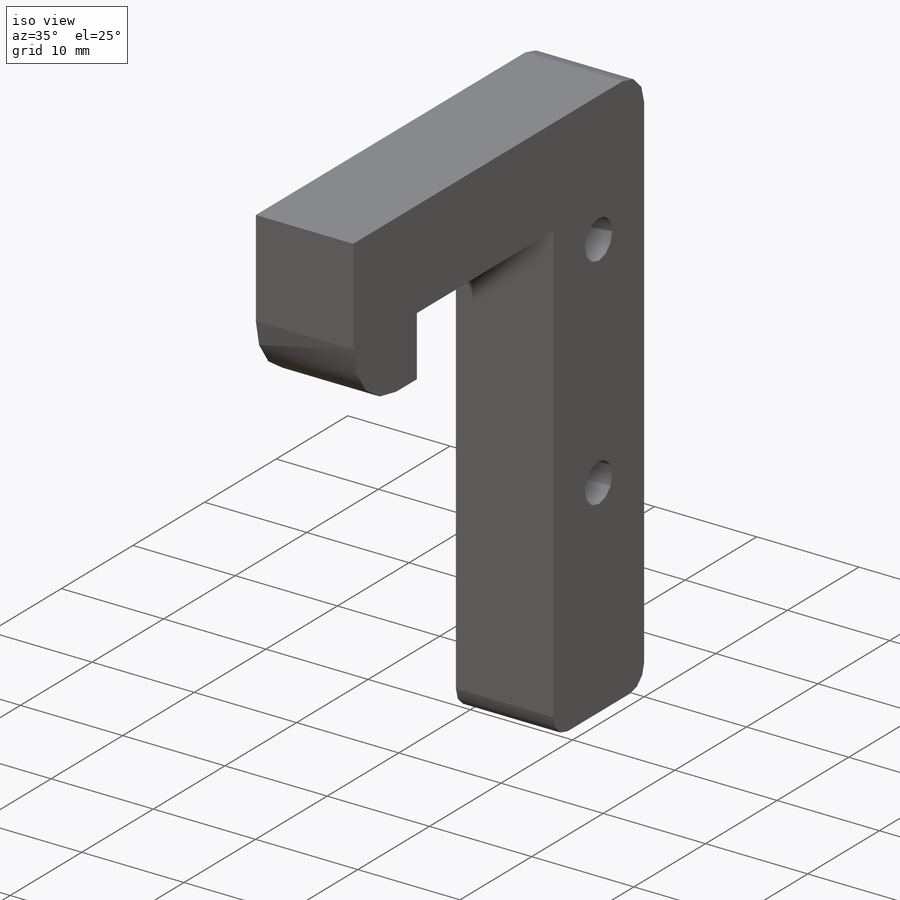
[diagram: iso view]
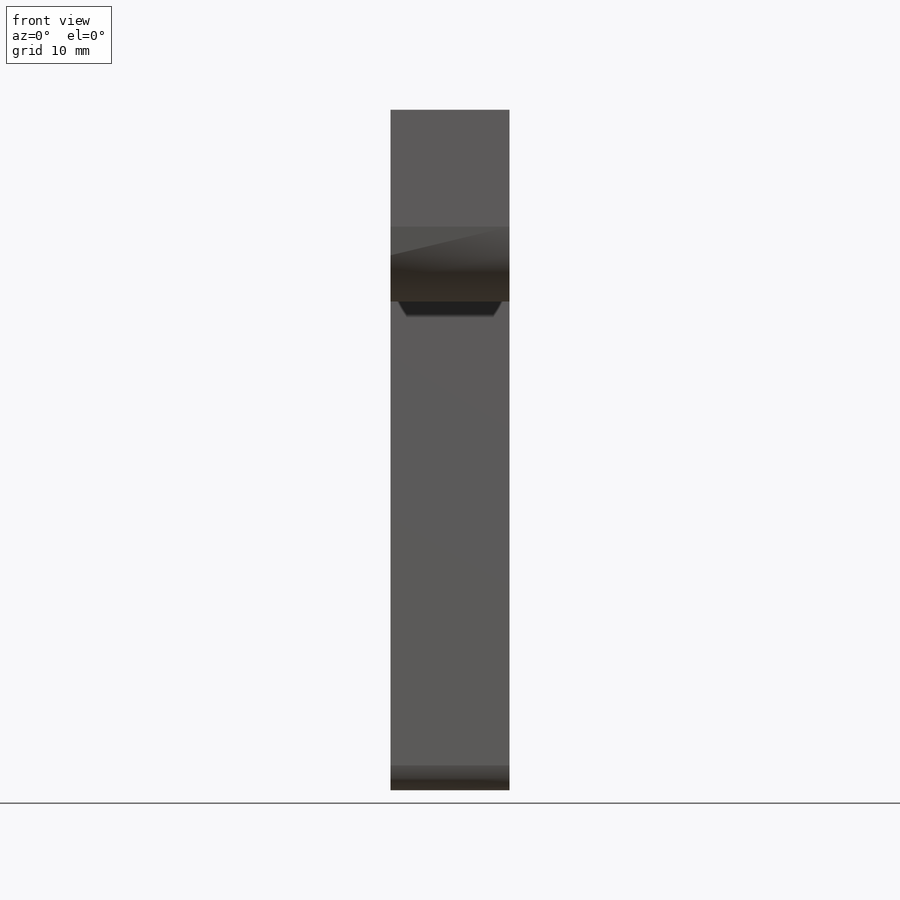
[diagram: front view]
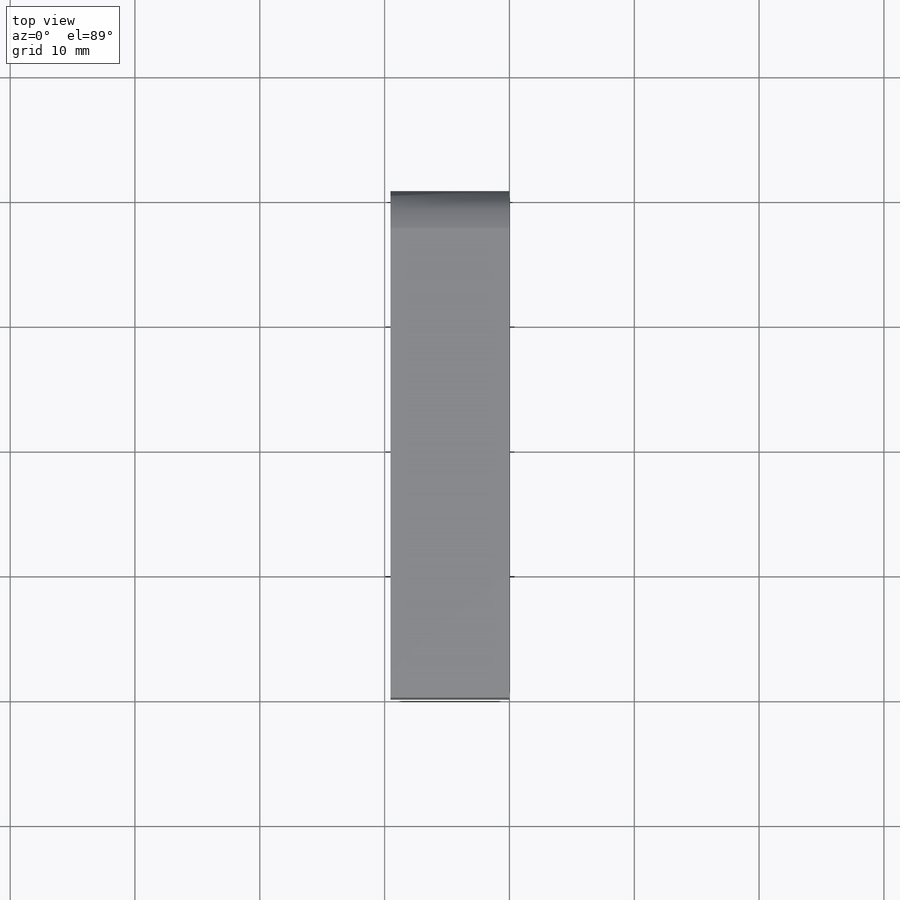
[diagram: top view]
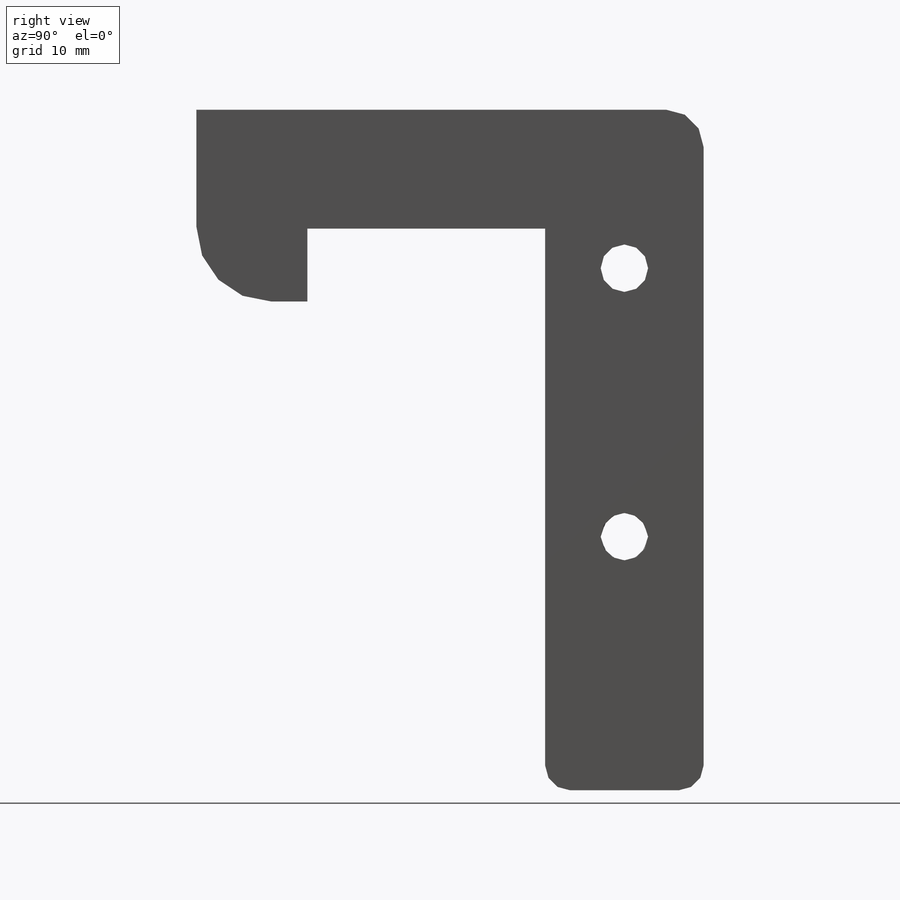
[diagram: right view]
SOLIDWORKS PART (.sldprt)
format: sldprt  version: not decoded by parser v0  size: 278,016 bytes
history: native  units: mm
features: sketch x9, plane x5, extrude x3, fillet x3, hole x3, material x1 + 1 further entry (+7 scaffold rows collapsed)
feature tree (32):
  scaffold x7  (default folders/planes/origin — collapsed)
  material  "Material <not specified>"
  plane  "정면"
  plane  "윗면"
  plane  "우측면"
  "원점"
  sketch  "Sketch1"  dims[D1=9.525mm D2=9.525mm]
  extrude  "Extrude1"  Depth=40.64mm
  plane  "Plane1"
  sketch  "Sketch3"  dims[D1=8.89mm]
  extrude  "Extrude2"  Depth=5.842mm
  fillet  "Fillet1"  Radius=6mm
  sketch  "Sketch4"  dims[D1=12.7mm]
  extrude  "Extrude3"  Depth=45mm
  plane  "Plane2"
  fillet  "Fillet2"  Radius=3mm
  hole  "#6 Clearance Hole1"  Diameter=3.7973mm Depth=9.906mm
  sketch  "3DSketch1"  dims[c1.D1=12.7mm c1.D2=~6.419801mm c1.D3=~6.419801mm c2.D3=14.0mm c2.D2=6.35mm]
  sketch  "Sketch5"  dims[hole-wizard template sketch: 47 standard entries collapsed; hole parameters kept: c15.Hole Depth=9.906mm c15.D3=~14.816244mm c15.Drill Angle=118.0deg]
  hole  "#6 Clearance Hole3"  Diameter=3.7973mm Depth=24.892mm
  sketch  "3DSketch2"  dims[D1=4.7625mm D2=6.35mm D3=6.0mm]
  sketch  "Sketch6"  dims[hole-wizard template sketch: 47 standard entries collapsed; hole parameters kept: c15.Hole Depth=24.892mm c15.D3=~14.816244mm c15.Drill Angle=118.0deg]
  hole  "#6 Clearance Hole4"  Diameter=3.7973mm Depth=29.972mm
  sketch  "3DSketch3"  dims[c1.D1=~23.407762mm c1.D3=20.0mm c1.D2=6.35mm c2.D1=20.32mm]
  sketch  "Sketch7"  dims[hole-wizard template sketch: 47 standard entries collapsed; hole parameters kept: c15.Hole Depth=29.972mm c15.D3=~14.816244mm c15.Drill Angle=118.0deg]
  fillet  "Fillet3"  Radius=2mm
decode coverage: 18 of 18 modeling features carry decoded parameters; 1 rows unclassified (native names shown)
note: ~ marks probable driven/reference dimensions
note: suppression state not decoded; provenance and decode notes live in map.json
